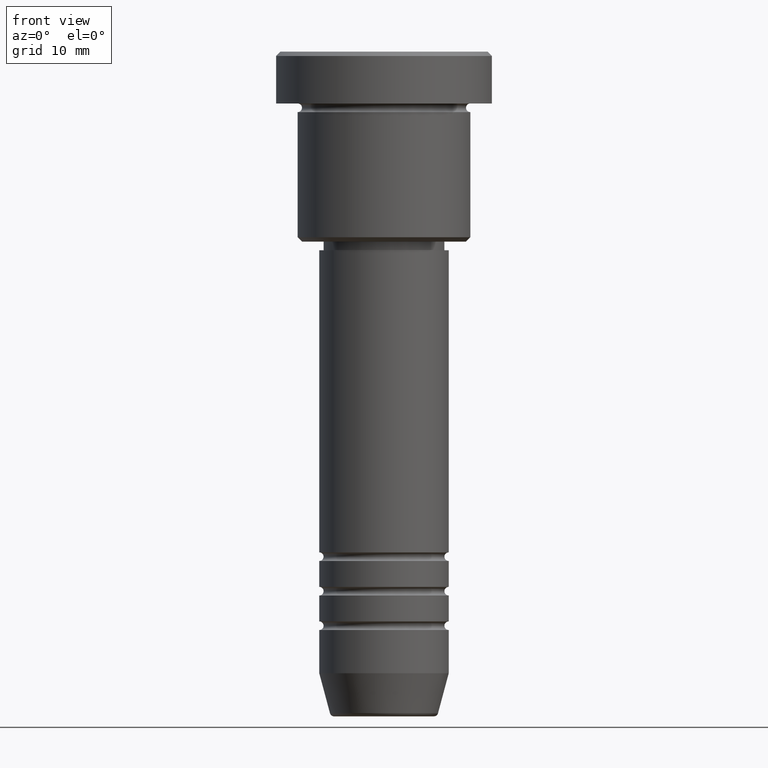
[diagram: clean part render]
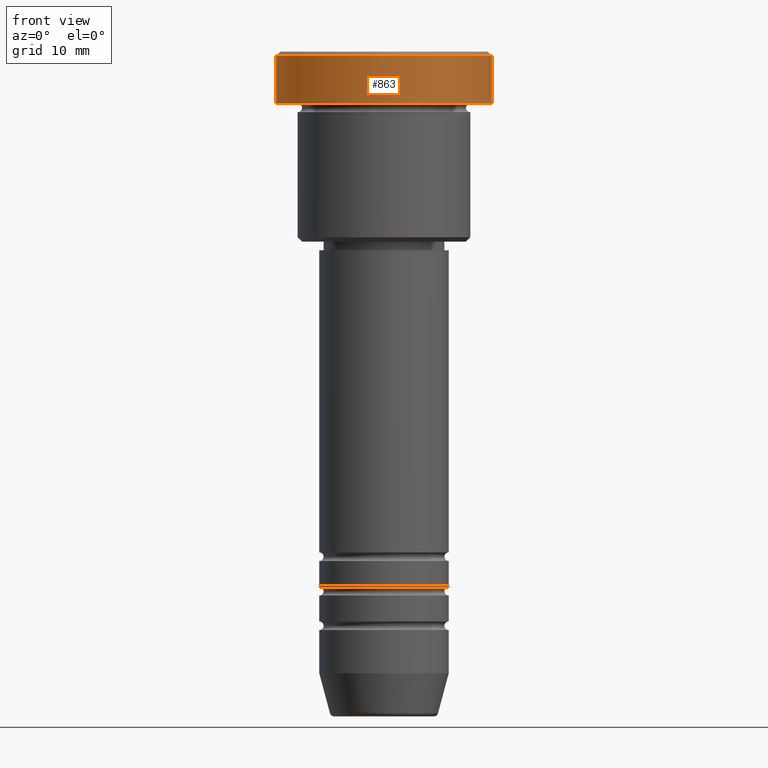
[diagram: same view with one face highlighted and labeled with its STEP entity id]
A machine part, front view. The second image highlights one B-rep face of the part: STEP entity #863.
In plain terms, the highlighted cylindrical surface (partial cylindrical patch) has radius 12.5 mm, axis along (-0, -0, 1).
Its self-contained STEP definition (entity closure, byte-faithful):
#20 = CYLINDRICAL_SURFACE ( 'NONE', #34, 12.50000000000000000 ) ;
#34 = AXIS2_PLACEMENT_3D ( 'NONE', #375, #581, #394 ) ;
#51 = ORIENTED_EDGE ( 'NONE', *, *, #921, .T. ) ;
#87 = CIRCLE ( 'NONE', #284, 12.50000000000000000 ) ;
#92 = VERTEX_POINT ( 'NONE', #709 ) ;
#104 = CARTESIAN_POINT ( 'NONE',  ( 0.000000000000000000, 0.000000000000000000, -0.4999999999999988343 ) ) ;
#110 = VECTOR ( 'NONE', #742, 1000.000000000000000 ) ;
#118 = EDGE_CURVE ( 'NONE', #92, #161, #87, .T. ) ;
#144 = DIRECTION ( 'NONE',  ( -0.000000000000000000, -0.000000000000000000, 1.000000000000000000 ) ) ;
#161 = VERTEX_POINT ( 'NONE', #1142 ) ;
#202 = LINE ( 'NONE', #1034, #110 ) ;
#250 = DIRECTION ( 'NONE',  ( 1.000000000000000000, 0.000000000000000000, 0.000000000000000000 ) ) ;
#279 = FACE_OUTER_BOUND ( 'NONE', #455, .T. ) ;
#284 = AXIS2_PLACEMENT_3D ( 'NONE', #1151, #1076, #250 ) ;
#375 = CARTESIAN_POINT ( 'NONE',  ( 0.000000000000000000, 0.000000000000000000, 0.000000000000000000 ) ) ;
#394 = DIRECTION ( 'NONE',  ( 1.000000000000000000, 0.000000000000000000, 0.000000000000000000 ) ) ;
#421 = CARTESIAN_POINT ( 'NONE',  ( -12.50000000000000000, 1.530808498934191521E-15, 0.000000000000000000 ) ) ;
#455 = EDGE_LOOP ( 'NONE', ( #611, #848, #646, #51 ) ) ;
#472 = DIRECTION ( 'NONE',  ( 0.000000000000000000, 0.000000000000000000, -1.000000000000000000 ) ) ;
#506 = LINE ( 'NONE', #421, #1110 ) ;
#581 = DIRECTION ( 'NONE',  ( -0.000000000000000000, -0.000000000000000000, 1.000000000000000000 ) ) ;
#602 = CARTESIAN_POINT ( 'NONE',  ( -12.50000000000000000, 1.530808498934191521E-15, -0.4999999999999988343 ) ) ;
#611 = ORIENTED_EDGE ( 'NONE', *, *, #1045, .F. ) ;
#646 = ORIENTED_EDGE ( 'NONE', *, *, #908, .T. ) ;
#709 = CARTESIAN_POINT ( 'NONE',  ( -12.50000000000000000, 1.530808498934191521E-15, -5.999999999999996447 ) ) ;
#740 = VERTEX_POINT ( 'NONE', #995 ) ;
#742 = DIRECTION ( 'NONE',  ( -0.000000000000000000, -0.000000000000000000, 1.000000000000000000 ) ) ;
#845 = DIRECTION ( 'NONE',  ( 1.000000000000000000, 0.000000000000000000, 0.000000000000000000 ) ) ;
#848 = ORIENTED_EDGE ( 'NONE', *, *, #118, .T. ) ;
#863 = ADVANCED_FACE ( 'NONE', ( #279 ), #20, .T. ) ;
#908 = EDGE_CURVE ( 'NONE', #161, #740, #202, .T. ) ;
#921 = EDGE_CURVE ( 'NONE', #740, #1038, #942, .T. ) ;
#942 = CIRCLE ( 'NONE', #1015, 12.50000000000000000 ) ;
#995 = CARTESIAN_POINT ( 'NONE',  ( 12.50000000000000000, 0.000000000000000000, -0.4999999999999988343 ) ) ;
#1015 = AXIS2_PLACEMENT_3D ( 'NONE', #104, #472, #845 ) ;
#1034 = CARTESIAN_POINT ( 'NONE',  ( 12.50000000000000000, 0.000000000000000000, 0.000000000000000000 ) ) ;
#1038 = VERTEX_POINT ( 'NONE', #602 ) ;
#1045 = EDGE_CURVE ( 'NONE', #92, #1038, #506, .T. ) ;
#1076 = DIRECTION ( 'NONE',  ( -0.000000000000000000, -0.000000000000000000, 1.000000000000000000 ) ) ;
#1110 = VECTOR ( 'NONE', #144, 1000.000000000000000 ) ;
#1142 = CARTESIAN_POINT ( 'NONE',  ( 12.50000000000000000, 0.000000000000000000, -5.999999999999996447 ) ) ;
#1151 = CARTESIAN_POINT ( 'NONE',  ( 0.000000000000000000, 0.000000000000000000, -5.999999999999996447 ) ) ;